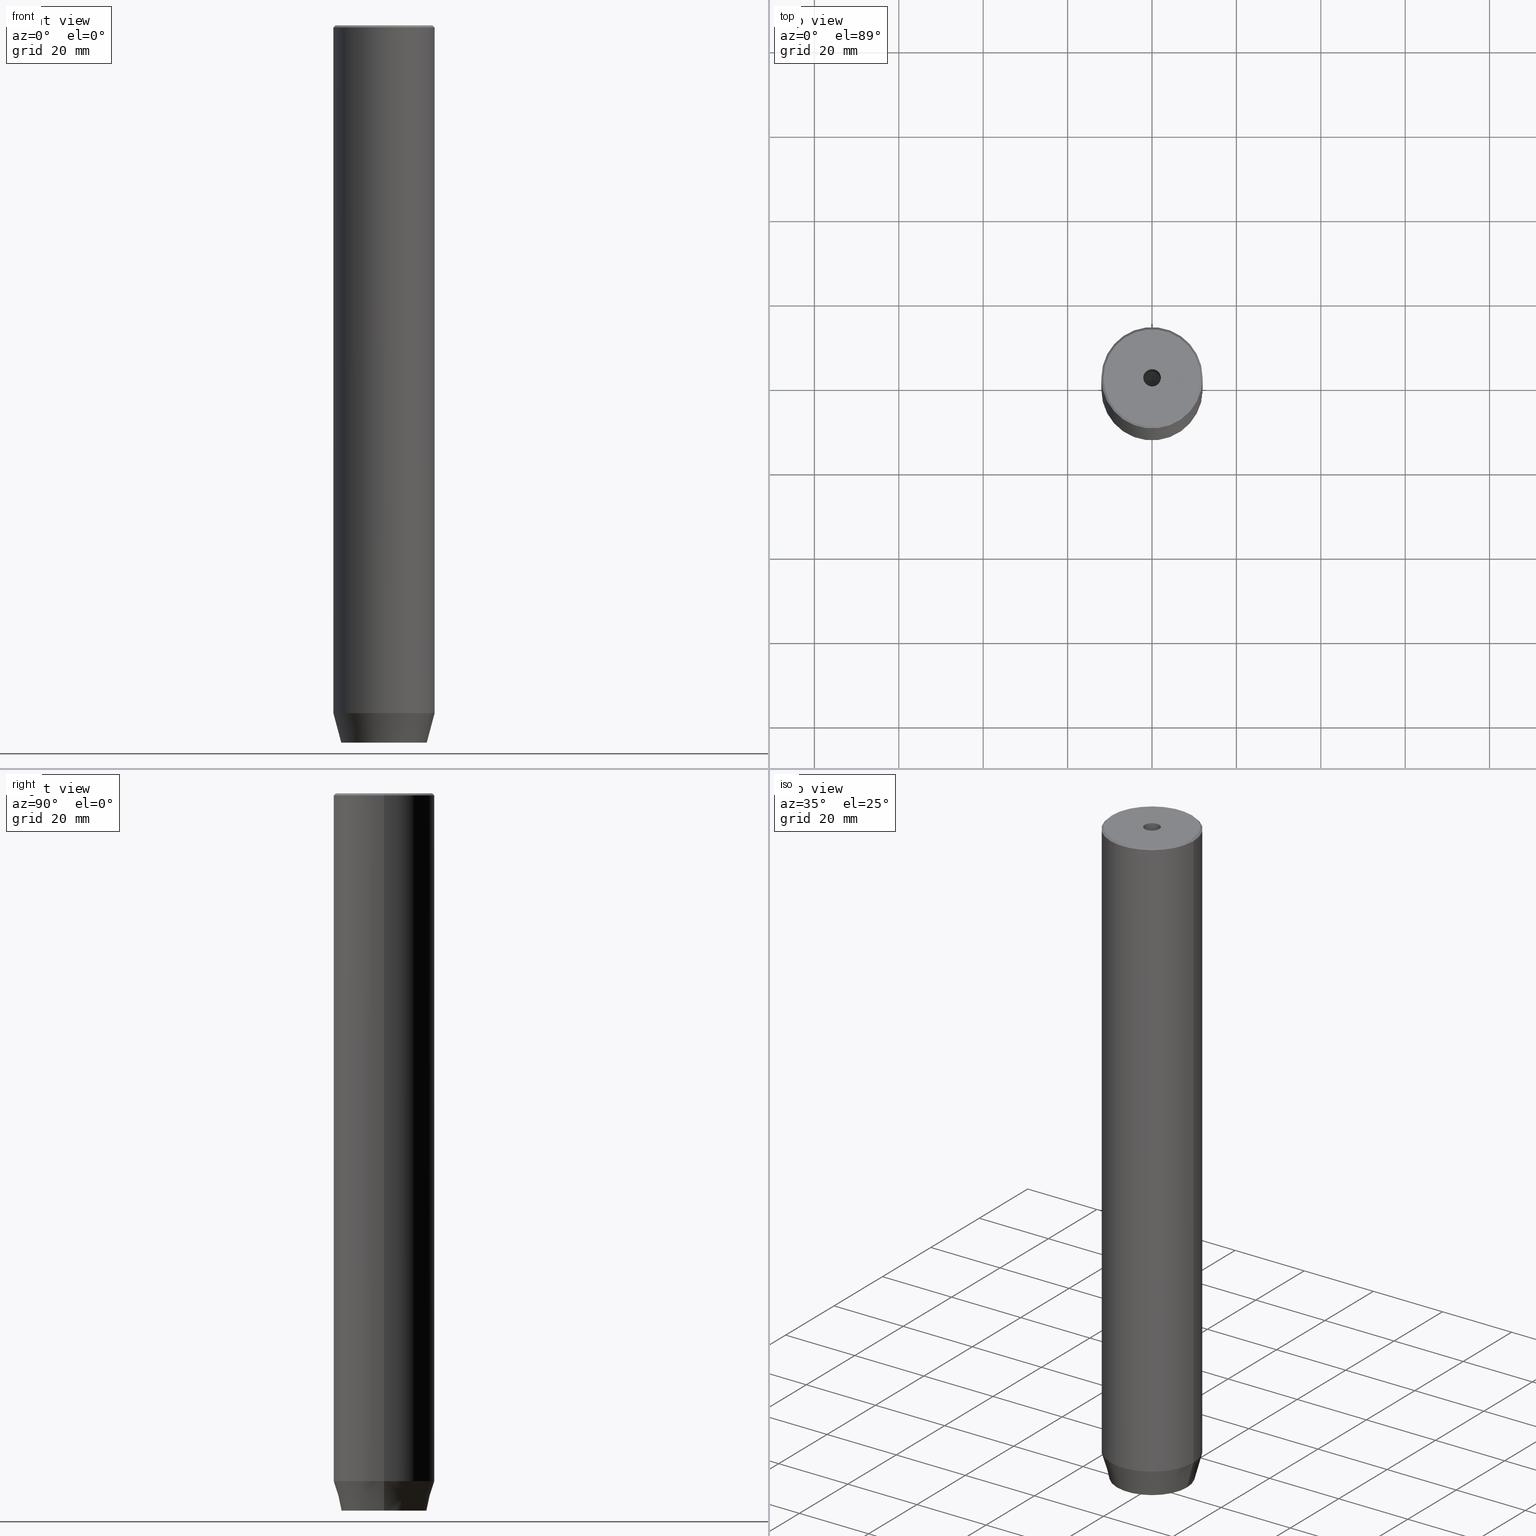
[diagram: canonical four-view strip — front | top / right | iso, engineering-drawing reading convention]
A machine part, canonical four-view strip (front | top / right | iso — engineering-drawing reading convention). The complete STEP part file that produces these views, byte-faithful:
ISO-10303-21;
HEADER;
FILE_DESCRIPTION (( 'STEP AP203' ),
    '1' );
FILE_NAME ('43f9.STEP',
    '2024-01-02T17:15:09',
    ( '' ),
    ( '' ),
    'SwSTEP 2.0',
    'SolidWorks 2019',
    '' );
FILE_SCHEMA (( 'CONFIG_CONTROL_DESIGN' ));
ENDSEC;

DATA;
#1 = FACE_OUTER_BOUND ( 'NONE', #454, .T. ) ;
#2 = VECTOR ( 'NONE', #385, 1000.000000000000000 ) ;
#3 = VECTOR ( 'NONE', #61, 1000.000000000000000 ) ;
#4 = EDGE_LOOP ( 'NONE', ( #36, #18 ) ) ;
#5 = FACE_BOUND ( 'NONE', #466, .T. ) ;
#6 = EDGE_CURVE ( 'NONE', #544, #267, #448, .T. ) ;
#7 = ORIENTED_EDGE ( 'NONE', *, *, #71, .T. ) ;
#8 = EDGE_CURVE ( 'NONE', #452, #434, #24, .T. ) ;
#9 = DIRECTION ( 'NONE',  ( 0.5000000000000001110, 0.8660254037844385966, -0.000000000000000000 ) ) ;
#10 = AXIS2_PLACEMENT_3D ( 'NONE', #182, #54, #540 ) ;
#11 = LOCAL_TIME ( 18, 15, 9.000000000000000000, #430 ) ;
#12 = CARTESIAN_POINT ( 'NONE',  ( -4.000000000000000000, 2.309401076758503368, -170.0000000000000000 ) ) ;
#13 = FACE_OUTER_BOUND ( 'NONE', #328, .T. ) ;
#14 = ORIENTED_EDGE ( 'NONE', *, *, #266, .T. ) ;
#15 = CARTESIAN_POINT ( 'NONE',  ( 12.00000000000000000, 0.000000000000000000, -162.9999999999999716 ) ) ;
#16 = CC_DESIGN_DATE_AND_TIME_ASSIGNMENT ( #210, #219, ( #223 ) ) ;
#17 = CARTESIAN_POINT ( 'NONE',  ( 2.000000000000000444, 3.464101615137754386, -167.2000000000000171 ) ) ;
#18 = ORIENTED_EDGE ( 'NONE', *, *, #131, .F. ) ;
#19 = CARTESIAN_POINT ( 'NONE',  ( 2.000000000000000888, -3.464101615137754386, -170.0000000000000000 ) ) ;
#20 = AXIS2_PLACEMENT_3D ( 'NONE', #417, #517, #513 ) ;
#21 = EDGE_CURVE ( 'NONE', #441, #414, #359, .T. ) ;
#22 = FACE_OUTER_BOUND ( 'NONE', #35, .T. ) ;
#23 = EDGE_LOOP ( 'NONE', ( #348, #227 ) ) ;
#24 = LINE ( 'NONE', #241, #501 ) ;
#25 = CARTESIAN_POINT ( 'NONE',  ( 2.000000000000000888, -3.464101615137754386, -167.2000000000000171 ) ) ;
#26 = CC_DESIGN_PERSON_AND_ORGANIZATION_ASSIGNMENT ( #32, #386, ( #84 ) ) ;
#27 = PERSON_AND_ORGANIZATION ( #47, #265 ) ;
#28 = AXIS2_PLACEMENT_3D ( 'NONE', #487, #138, #492 ) ;
#29 = AXIS2_PLACEMENT_3D ( 'NONE', #305, #296, #113 ) ;
#30 = COORDINATED_UNIVERSAL_TIME_OFFSET ( 1, 0, .AHEAD. ) ;
#31 = EDGE_CURVE ( 'NONE', #494, #452, #238, .T. ) ;
#32 = PERSON_AND_ORGANIZATION ( #47, #265 ) ;
#33 = DIRECTION ( 'NONE',  ( 0.000000000000000000, 0.000000000000000000, -1.000000000000000000 ) ) ;
#34 = LINE ( 'NONE', #310, #2 ) ;
#35 = EDGE_LOOP ( 'NONE', ( #196, #400, #566, #83 ) ) ;
#36 = ORIENTED_EDGE ( 'NONE', *, *, #206, .F. ) ;
#37 = APPROVAL_DATE_TIME ( #77, #447 ) ;
#38 = CARTESIAN_POINT ( 'NONE',  ( 0.000000000000000000, 0.000000000000000000, -167.2000000000000171 ) ) ;
#39 = VECTOR ( 'NONE', #58, 999.9999999999998863 ) ;
#40 = LINE ( 'NONE', #407, #461 ) ;
#41 = EDGE_LOOP ( 'NONE', ( #171, #491, #355, #190 ) ) ;
#42 = EDGE_CURVE ( 'NONE', #267, #262, #102, .T. ) ;
#43 = EDGE_CURVE ( 'NONE', #64, #270, #140, .T. ) ;
#44 = CARTESIAN_POINT ( 'NONE',  ( 2.099999999999994760, 0.000000000000000000, -30.00000000000000000 ) ) ;
#45 = ORIENTED_EDGE ( 'NONE', *, *, #345, .F. ) ;
#46 = ORIENTED_EDGE ( 'NONE', *, *, #419, .F. ) ;
#47 = PERSON ( 'NEUR�EN�', 'NEUR�EN�', 'NEUR�EN�', ('NEUR�EN�'), ('NEUR�EN�'), ('NEUR�EN�') ) ;
#48 = VECTOR ( 'NONE', #347, 1000.000000000000114 ) ;
#49 = CARTESIAN_POINT ( 'NONE',  ( -4.000000000000000000, -2.309401076758503368, -170.0000000000000000 ) ) ;
#50 = VECTOR ( 'NONE', #200, 1000.000000000000000 ) ;
#51 = CARTESIAN_POINT ( 'NONE',  ( 2.099999999999998757, 0.000000000000000000, -1.990051048614449116E-16 ) ) ;
#52 = EDGE_CURVE ( 'NONE', #270, #494, #559, .T. ) ;
#53 = DIRECTION ( 'NONE',  ( -0.5000000000000003331, -0.8660254037844385966, 0.000000000000000000 ) ) ;
#54 = DIRECTION ( 'NONE',  ( -0.000000000000000000, -0.000000000000000000, 1.000000000000000000 ) ) ;
#55 = CARTESIAN_POINT ( 'NONE',  ( -12.00000000000000000, 1.469576158976823947E-15, -162.9999999999999716 ) ) ;
#56 = DIRECTION ( 'NONE',  ( -1.000000000000000000, 0.000000000000000000, -0.000000000000000000 ) ) ;
#57 = AXIS2_PLACEMENT_3D ( 'NONE', #95, #396, #278 ) ;
#58 = DIRECTION ( 'NONE',  ( 0.8660254037844387076, 0.5000000000000001110, 0.000000000000000000 ) ) ;
#59 = APPROVAL ( #573, 'NEUR�EN�' ) ;
#60 = DIRECTION ( 'NONE',  ( -0.000000000000000000, -0.000000000000000000, -1.000000000000000000 ) ) ;
#61 = DIRECTION ( 'NONE',  ( -0.000000000000000000, -0.000000000000000000, 1.000000000000000000 ) ) ;
#62 = ORIENTED_EDGE ( 'NONE', *, *, #497, .F. ) ;
#63 = CARTESIAN_POINT ( 'NONE',  ( 0.000000000000000000, 0.000000000000000000, -30.00000000000000000 ) ) ;
#64 = VERTEX_POINT ( 'NONE', #143 ) ;
#65 = DIRECTION ( 'NONE',  ( 1.000000000000000000, 0.000000000000000000, 0.000000000000000000 ) ) ;
#66 = VERTEX_POINT ( 'NONE', #55 ) ;
#67 = VECTOR ( 'NONE', #144, 1000.000000000000000 ) ;
#68 =( NAMED_UNIT ( * ) SI_UNIT ( $, .STERADIAN. ) SOLID_ANGLE_UNIT ( ) );
#69 = APPROVAL ( #172, 'NEUR�EN�' ) ;
#70 = VECTOR ( 'NONE', #529, 1000.000000000000114 ) ;
#71 = EDGE_CURVE ( 'NONE', #452, #441, #460, .T. ) ;
#72 = ORIENTED_EDGE ( 'NONE', *, *, #42, .T. ) ;
#73 = CALENDAR_DATE ( 2024, 2, 1 ) ;
#74 = AXIS2_PLACEMENT_3D ( 'NONE', #148, #334, #509 ) ;
#75 = CALENDAR_DATE ( 2024, 2, 1 ) ;
#76 = AXIS2_PLACEMENT_3D ( 'NONE', #375, #165, #120 ) ;
#77 = DATE_AND_TIME ( #388, #216 ) ;
#78 = ADVANCED_FACE ( 'NONE', ( #510 ), #96, .T. ) ;
#79 = ORIENTED_EDGE ( 'NONE', *, *, #561, .F. ) ;
#80 = SHAPE_DEFINITION_REPRESENTATION ( #245, #519 ) ;
#81 = CARTESIAN_POINT ( 'NONE',  ( -11.49999999999999467, 0.000000000000000000, 0.000000000000000000 ) ) ;
#82 = CONICAL_SURFACE ( 'NONE', #423, 11.49999999999999467, 0.7853981633974482790 ) ;
#83 = ORIENTED_EDGE ( 'NONE', *, *, #321, .T. ) ;
#84 = SECURITY_CLASSIFICATION ( '', '', #161 ) ;
#85 = ORIENTED_EDGE ( 'NONE', *, *, #412, .F. ) ;
#86 = VERTEX_POINT ( 'NONE', #12 ) ;
#87 = AXIS2_PLACEMENT_3D ( 'NONE', #429, #583, #346 ) ;
#88 = DIRECTION ( 'NONE',  ( 0.000000000000000000, 1.000000000000000000, 0.000000000000000000 ) ) ;
#89 = ORIENTED_EDGE ( 'NONE', *, *, #43, .T. ) ;
#90 = ORIENTED_EDGE ( 'NONE', *, *, #211, .F. ) ;
#91 = LINE ( 'NONE', #446, #368 ) ;
#92 = ORIENTED_EDGE ( 'NONE', *, *, #21, .T. ) ;
#93 = LINE ( 'NONE', #99, #48 ) ;
#94 = ORIENTED_EDGE ( 'NONE', *, *, #156, .T. ) ;
#95 = CARTESIAN_POINT ( 'NONE',  ( 0.000000000000000000, 0.000000000000000000, 0.000000000000000000 ) ) ;
#96 = CONICAL_SURFACE ( 'NONE', #560, 11.49999999999999467, 0.7853981633974482790 ) ;
#97 = EDGE_CURVE ( 'NONE', #262, #354, #142, .T. ) ;
#98 = EDGE_CURVE ( 'NONE', #267, #398, #534, .T. ) ;
#99 = CARTESIAN_POINT ( 'NONE',  ( 12.00000000000000000, 0.000000000000000000, -162.9999999999999716 ) ) ;
#100 = DIRECTION ( 'NONE',  ( 1.000000000000000000, 0.000000000000000000, 0.000000000000000000 ) ) ;
#101 = ORIENTED_EDGE ( 'NONE', *, *, #556, .T. ) ;
#102 = LINE ( 'NONE', #234, #440 ) ;
#103 = ORIENTED_EDGE ( 'NONE', *, *, #98, .F. ) ;
#104 = DIRECTION ( 'NONE',  ( 0.7071067811865474617, 8.659560562354932858E-17, -0.7071067811865474617 ) ) ;
#105 = AXIS2_PLACEMENT_3D ( 'NONE', #362, #504, #100 ) ;
#106 = CARTESIAN_POINT ( 'NONE',  ( 0.000000000000000000, 0.000000000000000000, 0.000000000000000000 ) ) ;
#107 = EDGE_LOOP ( 'NONE', ( #468, #343, #233, #549 ) ) ;
#108 = CARTESIAN_POINT ( 'NONE',  ( 0.000000000000000000, 0.000000000000000000, -162.9999999999999716 ) ) ;
#109 = ORIENTED_EDGE ( 'NONE', *, *, #186, .T. ) ;
#110 = AXIS2_PLACEMENT_3D ( 'NONE', #585, #543, #500 ) ;
#111 =( LENGTH_UNIT ( ) NAMED_UNIT ( * ) SI_UNIT ( .MILLI., .METRE. ) );
#112 = CIRCLE ( 'NONE', #336, 2.099999999999998757 ) ;
#113 = DIRECTION ( 'NONE',  ( 1.000000000000000000, 0.000000000000000000, 0.000000000000000000 ) ) ;
#114 = DIRECTION ( 'NONE',  ( -0.000000000000000000, -0.000000000000000000, 1.000000000000000000 ) ) ;
#115 = PERSON_AND_ORGANIZATION ( #47, #265 ) ;
#116 = FACE_BOUND ( 'NONE', #418, .T. ) ;
#117 = FACE_OUTER_BOUND ( 'NONE', #290, .T. ) ;
#118 = VECTOR ( 'NONE', #104, 1000.000000000000114 ) ;
#119 = ADVANCED_FACE ( 'NONE', ( #522 ), #428, .T. ) ;
#120 = DIRECTION ( 'NONE',  ( -0.8660254037844385966, -0.4999999999999999445, 0.000000000000000000 ) ) ;
#121 = VECTOR ( 'NONE', #330, 1000.000000000000000 ) ;
#122 = ORIENTED_EDGE ( 'NONE', *, *, #393, .F. ) ;
#123 = APPLICATION_PROTOCOL_DEFINITION ( 'international standard', 'config_control_design', 1994, #438 ) ;
#124 = DIRECTION ( 'NONE',  ( 0.8660254037844384856, 0.5000000000000002220, 0.000000000000000000 ) ) ;
#125 = ORIENTED_EDGE ( 'NONE', *, *, #300, .F. ) ;
#126 = PERSON_AND_ORGANIZATION ( #47, #265 ) ;
#127 = VERTEX_POINT ( 'NONE', #274 ) ;
#128 = ADVANCED_FACE ( 'NONE', ( #183 ), #314, .F. ) ;
#129 = LINE ( 'NONE', #175, #199 ) ;
#130 = PLANE ( 'NONE',  #248 ) ;
#131 = EDGE_CURVE ( 'NONE', #304, #350, #170, .T. ) ;
#132 = ORIENTED_EDGE ( 'NONE', *, *, #561, .T. ) ;
#133 = ORIENTED_EDGE ( 'NONE', *, *, #551, .F. ) ;
#134 = FACE_OUTER_BOUND ( 'NONE', #107, .T. ) ;
#135 = DIRECTION ( 'NONE',  ( 1.000000000000000000, 0.000000000000000000, 0.000000000000000000 ) ) ;
#136 = ORIENTED_EDGE ( 'NONE', *, *, #8, .T. ) ;
#137 = EDGE_CURVE ( 'NONE', #304, #66, #380, .T. ) ;
#138 = DIRECTION ( 'NONE',  ( -0.000000000000000000, -0.000000000000000000, 1.000000000000000000 ) ) ;
#139 = UNCERTAINTY_MEASURE_WITH_UNIT (LENGTH_MEASURE( 1.000000000000000082E-05 ), #111, 'distance_accuracy_value', 'NONE');
#140 = LINE ( 'NONE', #283, #192 ) ;
#141 = DIRECTION ( 'NONE',  ( 0.000000000000000000, 0.000000000000000000, -1.000000000000000000 ) ) ;
#142 = CIRCLE ( 'NONE', #205, 2.099999999999998757 ) ;
#143 = CARTESIAN_POINT ( 'NONE',  ( 4.336808689942017736E-16, -4.618802153517006737, -167.2000000000000171 ) ) ;
#144 = DIRECTION ( 'NONE',  ( -0.000000000000000000, -0.000000000000000000, 1.000000000000000000 ) ) ;
#145 = CC_DESIGN_DATE_AND_TIME_ASSIGNMENT ( #537, #533, ( #84 ) ) ;
#146 = EDGE_LOOP ( 'NONE', ( #160, #335, #432, #563 ) ) ;
#147 = FACE_OUTER_BOUND ( 'NONE', #373, .T. ) ;
#148 = CARTESIAN_POINT ( 'NONE',  ( 0.000000000000000000, 0.000000000000000000, 0.000000000000000000 ) ) ;
#149 = VECTOR ( 'NONE', #565, 1000.000000000000114 ) ;
#150 = ORIENTED_EDGE ( 'NONE', *, *, #71, .F. ) ;
#151 = LINE ( 'NONE', #408, #118 ) ;
#152 = ORIENTED_EDGE ( 'NONE', *, *, #97, .T. ) ;
#153 = LINE ( 'NONE', #194, #252 ) ;
#154 = CARTESIAN_POINT ( 'NONE',  ( 0.000000000000000000, 0.000000000000000000, -0.5000000000000056621 ) ) ;
#155 = CARTESIAN_POINT ( 'NONE',  ( -10.12435565298212836, 1.354726066681110655E-15, -170.0000000000000000 ) ) ;
#156 = EDGE_CURVE ( 'NONE', #217, #197, #212, .T. ) ;
#157 = MANIFOLD_SOLID_BREP ( 'Vrt�k z�vitn�ku pro M5 z�vit1', #302 ) ;
#158 =( GEOMETRIC_REPRESENTATION_CONTEXT ( 3 ) GLOBAL_UNCERTAINTY_ASSIGNED_CONTEXT ( ( #139 ) ) GLOBAL_UNIT_ASSIGNED_CONTEXT ( ( #111, #193, #68 ) ) REPRESENTATION_CONTEXT ( 'NONE', 'WORKASPACE' ) );
#159 = CARTESIAN_POINT ( 'NONE',  ( -12.00000000000000000, 1.469576158976823947E-15, -0.5000000000000056621 ) ) ;
#160 = ORIENTED_EDGE ( 'NONE', *, *, #137, .F. ) ;
#161 = SECURITY_CLASSIFICATION_LEVEL ( 'unclassified' ) ;
#162 = DIRECTION ( 'NONE',  ( -0.000000000000000000, -0.000000000000000000, -1.000000000000000000 ) ) ;
#163 = COORDINATED_UNIVERSAL_TIME_OFFSET ( 1, 0, .AHEAD. ) ;
#164 = FACE_OUTER_BOUND ( 'NONE', #272, .T. ) ;
#165 = DIRECTION ( 'NONE',  ( -0.5000000000000000000, 0.8660254037844387076, 0.000000000000000000 ) ) ;
#166 = ORIENTED_EDGE ( 'NONE', *, *, #337, .F. ) ;
#167 = CALENDAR_DATE ( 2024, 2, 1 ) ;
#168 = CARTESIAN_POINT ( 'NONE',  ( 4.000000000000000000, 0.000000000000000000, -167.2000000000000171 ) ) ;
#169 = ORIENTED_EDGE ( 'NONE', *, *, #427, .T. ) ;
#170 = CIRCLE ( 'NONE', #269, 10.12435565298212836 ) ;
#171 = ORIENTED_EDGE ( 'NONE', *, *, #439, .T. ) ;
#172 = APPROVAL_STATUS ( 'not_yet_approved' ) ;
#173 = LINE ( 'NONE', #515, #303 ) ;
#174 = ORIENTED_EDGE ( 'NONE', *, *, #97, .F. ) ;
#175 = CARTESIAN_POINT ( 'NONE',  ( 4.336808689942017736E-16, -4.618802153517006737, -167.2000000000000171 ) ) ;
#176 = CARTESIAN_POINT ( 'NONE',  ( 2.000000000000000888, -3.464101615137754386, -167.2000000000000171 ) ) ;
#177 = DIRECTION ( 'NONE',  ( 1.000000000000000000, 0.000000000000000000, 0.000000000000000000 ) ) ;
#178 = AXIS2_PLACEMENT_3D ( 'NONE', #361, #9, #503 ) ;
#179 = LINE ( 'NONE', #401, #437 ) ;
#180 = DIRECTION ( 'NONE',  ( 1.000000000000000000, 0.000000000000000000, 0.000000000000000000 ) ) ;
#181 = CIRCLE ( 'NONE', #410, 10.12435565298212836 ) ;
#182 = CARTESIAN_POINT ( 'NONE',  ( 0.000000000000000000, 0.000000000000000000, 0.000000000000000000 ) ) ;
#183 = FACE_OUTER_BOUND ( 'NONE', #293, .T. ) ;
#184 = ADVANCED_FACE ( 'NONE', ( #572 ), #285, .T. ) ;
#185 = CARTESIAN_POINT ( 'NONE',  ( -2.099999999999994760, 2.571758278209435054E-16, -30.00000000000000000 ) ) ;
#186 = EDGE_CURVE ( 'NONE', #441, #127, #34, .T. ) ;
#187 = CARTESIAN_POINT ( 'NONE',  ( 0.000000000000000000, 4.618802153517006737, -167.2000000000000171 ) ) ;
#188 = ORIENTED_EDGE ( 'NONE', *, *, #98, .T. ) ;
#189 = FACE_OUTER_BOUND ( 'NONE', #261, .T. ) ;
#190 = ORIENTED_EDGE ( 'NONE', *, *, #581, .T. ) ;
#191 = DIRECTION ( 'NONE',  ( -0.000000000000000000, -0.000000000000000000, 1.000000000000000000 ) ) ;
#192 = VECTOR ( 'NONE', #502, 1000.000000000000114 ) ;
#193 =( NAMED_UNIT ( * ) PLANE_ANGLE_UNIT ( ) SI_UNIT ( $, .RADIAN. ) );
#194 = CARTESIAN_POINT ( 'NONE',  ( 2.000000000000000444, 3.464101615137754386, -170.0000000000000000 ) ) ;
#195 = EDGE_CURVE ( 'NONE', #354, #262, #112, .T. ) ;
#196 = ORIENTED_EDGE ( 'NONE', *, *, #211, .T. ) ;
#197 = VERTEX_POINT ( 'NONE', #159 ) ;
#198 = CARTESIAN_POINT ( 'NONE',  ( -2.000000000000000888, -3.464101615137754386, -170.0000000000000000 ) ) ;
#199 = VECTOR ( 'NONE', #231, 1000.000000000000000 ) ;
#200 = DIRECTION ( 'NONE',  ( -0.8571673007021113344, 1.049727191138617463E-16, 0.5150380749100558209 ) ) ;
#201 = CC_DESIGN_PERSON_AND_ORGANIZATION_ASSIGNMENT ( #477, #530, ( #349 ) ) ;
#202 = PLANE ( 'NONE',  #76 ) ;
#203 = ORIENTED_EDGE ( 'NONE', *, *, #512, .T. ) ;
#204 = LINE ( 'NONE', #415, #358 ) ;
#205 = AXIS2_PLACEMENT_3D ( 'NONE', #409, #191, #371 ) ;
#206 = EDGE_CURVE ( 'NONE', #350, #304, #181, .T. ) ;
#207 = DIRECTION ( 'NONE',  ( -0.000000000000000000, -0.000000000000000000, 1.000000000000000000 ) ) ;
#208 = CIRCLE ( 'NONE', #28, 11.49999999999999467 ) ;
#209 = CC_DESIGN_APPROVAL ( #69, ( #223 ) ) ;
#210 = DATE_AND_TIME ( #167, #277 ) ;
#211 = EDGE_CURVE ( 'NONE', #86, #434, #483, .T. ) ;
#212 = LINE ( 'NONE', #435, #472 ) ;
#213 = PERSON_AND_ORGANIZATION ( #47, #265 ) ;
#214 = ORIENTED_EDGE ( 'NONE', *, *, #43, .F. ) ;
#215 = VECTOR ( 'NONE', #333, 1000.000000000000114 ) ;
#216 = LOCAL_TIME ( 18, 15, 9.000000000000000000, #426 ) ;
#217 = VERTEX_POINT ( 'NONE', #81 ) ;
#218 = CARTESIAN_POINT ( 'NONE',  ( 4.336808689942017736E-16, -4.618802153517006737, -170.0000000000000000 ) ) ;
#219 = DATE_TIME_ROLE ( 'creation_date' ) ;
#220 = DIRECTION ( 'NONE',  ( -1.000000000000000000, 0.000000000000000000, -0.000000000000000000 ) ) ;
#221 = ORIENTED_EDGE ( 'NONE', *, *, #528, .T. ) ;
#222 = CYLINDRICAL_SURFACE ( 'NONE', #10, 12.00000000000000000 ) ;
#223 = PRODUCT_DEFINITION ( 'NEZN�M�', '', #349, #322 ) ;
#224 = VECTOR ( 'NONE', #312, 1000.000000000000000 ) ;
#225 = EDGE_LOOP ( 'NONE', ( #103, #72, #152, #133 ) ) ;
#226 = CARTESIAN_POINT ( 'NONE',  ( 10.12435565298212836, 0.000000000000000000, -170.0000000000000000 ) ) ;
#227 = ORIENTED_EDGE ( 'NONE', *, *, #337, .T. ) ;
#228 = DIRECTION ( 'NONE',  ( 0.000000000000000000, -1.000000000000000000, 0.000000000000000000 ) ) ;
#229 = CARTESIAN_POINT ( 'NONE',  ( 11.49999999999999467, 1.438959988998139766E-15, 0.000000000000000000 ) ) ;
#230 = DIRECTION ( 'NONE',  ( 0.8660254037844384856, -0.5000000000000002220, 0.000000000000000000 ) ) ;
#231 = DIRECTION ( 'NONE',  ( -0.000000000000000000, -0.000000000000000000, -1.000000000000000000 ) ) ;
#232 = DIRECTION ( 'NONE',  ( -0.8660254037844384856, -0.5000000000000002220, 0.000000000000000000 ) ) ;
#233 = ORIENTED_EDGE ( 'NONE', *, *, #300, .T. ) ;
#234 = CARTESIAN_POINT ( 'NONE',  ( -2.099999999999996980, 2.571758278209438013E-16, 0.000000000000000000 ) ) ;
#235 = ADVANCED_FACE ( 'NONE', ( #117 ), #130, .T. ) ;
#236 = ORIENTED_EDGE ( 'NONE', *, *, #31, .T. ) ;
#237 = LINE ( 'NONE', #25, #215 ) ;
#238 = LINE ( 'NONE', #555, #39 ) ;
#239 = DIRECTION ( 'NONE',  ( 1.000000000000000000, 0.000000000000000000, 0.000000000000000000 ) ) ;
#240 = ADVANCED_FACE ( 'NONE', ( #286 ), #558, .F. ) ;
#241 = CARTESIAN_POINT ( 'NONE',  ( 0.000000000000000000, 4.618802153517006737, -167.2000000000000171 ) ) ;
#242 = DIRECTION ( 'NONE',  ( -0.000000000000000000, 0.000000000000000000, -1.000000000000000000 ) ) ;
#243 = VERTEX_POINT ( 'NONE', #218 ) ;
#244 = CARTESIAN_POINT ( 'NONE',  ( 4.000000000000000000, -2.309401076758502480, -170.0000000000000000 ) ) ;
#245 = PRODUCT_DEFINITION_SHAPE ( 'NONE', 'NONE',  #223 ) ;
#246 = ORIENTED_EDGE ( 'NONE', *, *, #535, .T. ) ;
#247 = DIRECTION ( 'NONE',  ( 1.000000000000000000, 0.000000000000000000, 0.000000000000000000 ) ) ;
#248 = AXIS2_PLACEMENT_3D ( 'NONE', #38, #33, #220 ) ;
#249 = ORIENTED_EDGE ( 'NONE', *, *, #528, .F. ) ;
#250 = COORDINATED_UNIVERSAL_TIME_OFFSET ( 1, 0, .AHEAD. ) ;
#251 = DATE_AND_TIME ( #73, #327 ) ;
#252 = VECTOR ( 'NONE', #366, 1000.000000000000000 ) ;
#253 = ORIENTED_EDGE ( 'NONE', *, *, #556, .F. ) ;
#254 = CC_DESIGN_SECURITY_CLASSIFICATION ( #84, ( #349 ) ) ;
#255 = CARTESIAN_POINT ( 'NONE',  ( 0.000000000000000000, 0.000000000000000000, -170.0000000000000000 ) ) ;
#256 = APPROVAL_DATE_TIME ( #481, #59 ) ;
#257 = AXIS2_PLACEMENT_3D ( 'NONE', #317, #53, #230 ) ;
#258 = PERSON_AND_ORGANIZATION ( #47, #265 ) ;
#259 = ORIENTED_EDGE ( 'NONE', *, *, #419, .T. ) ;
#260 = DIRECTION ( 'NONE',  ( 0.8660254037844387076, 0.5000000000000001110, 0.000000000000000000 ) ) ;
#261 = EDGE_LOOP ( 'NONE', ( #166, #101, #311, #496 ) ) ;
#262 = VERTEX_POINT ( 'NONE', #476 ) ;
#263 = APPROVAL_DATE_TIME ( #251, #69 ) ;
#264 = CIRCLE ( 'NONE', #531, 2.099999999999994760 ) ;
#265 = ORGANIZATION ( 'NEUR�EN�', 'NEUR�EN�', '' ) ;
#266 = EDGE_CURVE ( 'NONE', #127, #584, #40, .T. ) ;
#267 = VERTEX_POINT ( 'NONE', #185 ) ;
#268 = VECTOR ( 'NONE', #455, 1000.000000000000000 ) ;
#269 = AXIS2_PLACEMENT_3D ( 'NONE', #445, #301, #372 ) ;
#270 = VERTEX_POINT ( 'NONE', #505 ) ;
#271 = PLANE ( 'NONE',  #178 ) ;
#272 = EDGE_LOOP ( 'NONE', ( #14, #85, #520, #109 ) ) ;
#273 = DIRECTION ( 'NONE',  ( 1.000000000000000000, 0.000000000000000000, 0.000000000000000000 ) ) ;
#274 = CARTESIAN_POINT ( 'NONE',  ( 4.000000000000000000, 2.309401076758503368, -170.0000000000000000 ) ) ;
#275 = CIRCLE ( 'NONE', #316, 12.00000000000000000 ) ;
#276 = ORIENTED_EDGE ( 'NONE', *, *, #512, .F. ) ;
#277 = LOCAL_TIME ( 18, 15, 9.000000000000000000, #30 ) ;
#278 = DIRECTION ( 'NONE',  ( 1.000000000000000000, 0.000000000000000000, 0.000000000000000000 ) ) ;
#279 = CARTESIAN_POINT ( 'NONE',  ( 0.000000000000000000, 0.000000000000000000, -162.9999999999999716 ) ) ;
#280 = DIRECTION ( 'NONE',  ( -0.000000000000000000, -0.000000000000000000, -1.000000000000000000 ) ) ;
#281 = PLANE ( 'NONE',  #110 ) ;
#282 = FACE_OUTER_BOUND ( 'NONE', #225, .T. ) ;
#283 = CARTESIAN_POINT ( 'NONE',  ( -2.000000000000000888, -3.464101615137754386, -167.2000000000000171 ) ) ;
#284 = DIRECTION ( 'NONE',  ( -0.000000000000000000, -0.000000000000000000, 1.000000000000000000 ) ) ;
#285 = CONICAL_SURFACE ( 'NONE', #87, 12.00000000000000000, 0.2617993877991499629 ) ;
#286 = FACE_OUTER_BOUND ( 'NONE', #395, .T. ) ;
#287 = ORIENTED_EDGE ( 'NONE', *, *, #6, .T. ) ;
#288 = CARTESIAN_POINT ( 'NONE',  ( -4.000000000000000000, 2.309401076758503368, -167.2000000000000171 ) ) ;
#289 = ADVANCED_FACE ( 'NONE', ( #147 ), #325, .F. ) ;
#290 = EDGE_LOOP ( 'NONE', ( #236, #7, #92, #132, #89, #464 ) ) ;
#291 = ORIENTED_EDGE ( 'NONE', *, *, #137, .T. ) ;
#292 = DIRECTION ( 'NONE',  ( -0.000000000000000000, -0.000000000000000000, 1.000000000000000000 ) ) ;
#293 = EDGE_LOOP ( 'NONE', ( #246, #46, #79, #484 ) ) ;
#294 = CARTESIAN_POINT ( 'NONE',  ( 0.000000000000000000, 0.000000000000000000, -30.00000000000000000 ) ) ;
#295 = ORIENTED_EDGE ( 'NONE', *, *, #499, .T. ) ;
#296 = DIRECTION ( 'NONE',  ( 0.000000000000000000, 0.000000000000000000, 1.000000000000000000 ) ) ;
#297 = CARTESIAN_POINT ( 'NONE',  ( 0.000000000000000000, 0.000000000000000000, 0.000000000000000000 ) ) ;
#298 = APPROVAL_ROLE ( '' ) ;
#299 = CIRCLE ( 'NONE', #57, 11.49999999999999467 ) ;
#300 = EDGE_CURVE ( 'NONE', #495, #547, #514, .T. ) ;
#301 = DIRECTION ( 'NONE',  ( -0.000000000000000000, -0.000000000000000000, 1.000000000000000000 ) ) ;
#302 = CLOSED_SHELL ( 'NONE', ( #306, #469, #462, #119, #527, #331, #397, #340, #184, #78, #319, #569, #289, #128, #308, #443, #235, #360, #240 ) ) ;
#303 = VECTOR ( 'NONE', #162, 1000.000000000000000 ) ;
#304 = VERTEX_POINT ( 'NONE', #155 ) ;
#305 = CARTESIAN_POINT ( 'NONE',  ( 0.000000000000000000, 0.000000000000000000, 0.000000000000000000 ) ) ;
#306 = ADVANCED_FACE ( 'NONE', ( #282 ), #524, .F. ) ;
#307 = EDGE_LOOP ( 'NONE', ( #420, #203, #580 ) ) ;
#308 = ADVANCED_FACE ( 'NONE', ( #164 ), #431, .F. ) ;
#309 = AXIS2_PLACEMENT_3D ( 'NONE', #456, #141, #56 ) ;
#310 = CARTESIAN_POINT ( 'NONE',  ( 4.000000000000000000, 2.309401076758503368, -167.2000000000000171 ) ) ;
#311 = ORIENTED_EDGE ( 'NONE', *, *, #499, .F. ) ;
#312 = DIRECTION ( 'NONE',  ( -0.000000000000000000, -0.000000000000000000, -1.000000000000000000 ) ) ;
#313 = DIRECTION ( 'NONE',  ( -0.000000000000000000, -0.000000000000000000, 1.000000000000000000 ) ) ;
#314 = PLANE ( 'NONE',  #421 ) ;
#315 = CARTESIAN_POINT ( 'NONE',  ( -4.336808689942017736E-16, 4.618802153517006737, -170.0000000000000000 ) ) ;
#316 = AXIS2_PLACEMENT_3D ( 'NONE', #154, #370, #329 ) ;
#317 = CARTESIAN_POINT ( 'NONE',  ( -2.000000000000000888, -3.464101615137754386, -167.2000000000000171 ) ) ;
#318 = DIRECTION ( 'NONE',  ( 1.000000000000000000, 0.000000000000000000, 0.000000000000000000 ) ) ;
#319 = ADVANCED_FACE ( 'NONE', ( #22 ), #202, .F. ) ;
#320 = LINE ( 'NONE', #586, #224 ) ;
#321 = EDGE_CURVE ( 'NONE', #494, #86, #173, .T. ) ;
#322 = DESIGN_CONTEXT ( 'detailed design', #438, 'design' ) ;
#323 = DIRECTION ( 'NONE',  ( 0.000000000000000000, 0.000000000000000000, -1.000000000000000000 ) ) ;
#324 = DIRECTION ( 'NONE',  ( 0.000000000000000000, -1.000000000000000000, 0.000000000000000000 ) ) ;
#325 = PLANE ( 'NONE',  #257 ) ;
#326 = AXIS2_PLACEMENT_3D ( 'NONE', #279, #545, #273 ) ;
#327 = LOCAL_TIME ( 18, 15, 9.000000000000000000, #163 ) ;
#328 = EDGE_LOOP ( 'NONE', ( #276, #287, #188 ) ) ;
#329 = DIRECTION ( 'NONE',  ( 1.000000000000000000, 0.000000000000000000, 0.000000000000000000 ) ) ;
#330 = DIRECTION ( 'NONE',  ( 0.8660254037844385966, -0.5000000000000001110, 0.000000000000000000 ) ) ;
#331 = ADVANCED_FACE ( 'NONE', ( #116, #406 ), #550, .T. ) ;
#332 = FACE_OUTER_BOUND ( 'NONE', #41, .T. ) ;
#333 = DIRECTION ( 'NONE',  ( -0.8660254037844384856, -0.5000000000000002220, 0.000000000000000000 ) ) ;
#334 = DIRECTION ( 'NONE',  ( -0.000000000000000000, -0.000000000000000000, 1.000000000000000000 ) ) ;
#335 = ORIENTED_EDGE ( 'NONE', *, *, #131, .T. ) ;
#336 = AXIS2_PLACEMENT_3D ( 'NONE', #546, #526, #470 ) ;
#337 = EDGE_CURVE ( 'NONE', #390, #217, #299, .T. ) ;
#338 = APPROVAL_STATUS ( 'not_yet_approved' ) ;
#339 = DIRECTION ( 'NONE',  ( -0.000000000000000000, -0.000000000000000000, 1.000000000000000000 ) ) ;
#340 = ADVANCED_FACE ( 'NONE', ( #134 ), #222, .T. ) ;
#341 = CIRCLE ( 'NONE', #576, 12.00000000000000000 ) ;
#342 = LOCAL_TIME ( 18, 15, 9.000000000000000000, #250 ) ;
#343 = ORIENTED_EDGE ( 'NONE', *, *, #571, .T. ) ;
#344 = APPROVAL_ROLE ( '' ) ;
#345 = EDGE_CURVE ( 'NONE', #350, #495, #93, .T. ) ;
#346 = DIRECTION ( 'NONE',  ( 1.000000000000000000, 0.000000000000000000, 0.000000000000000000 ) ) ;
#347 = DIRECTION ( 'NONE',  ( 0.2588190451025212391, 0.000000000000000000, 0.9659258262890680902 ) ) ;
#348 = ORIENTED_EDGE ( 'NONE', *, *, #405, .T. ) ;
#349 = PRODUCT_DEFINITION_FORMATION_WITH_SPECIFIED_SOURCE ( 'LIBOVOLN�', '', #478, .NOT_KNOWN. ) ;
#350 = VERTEX_POINT ( 'NONE', #226 ) ;
#351 = VERTEX_POINT ( 'NONE', #49 ) ;
#352 = DIRECTION ( 'NONE',  ( -0.000000000000000000, -0.000000000000000000, 1.000000000000000000 ) ) ;
#353 = CARTESIAN_POINT ( 'NONE',  ( 0.000000000000000000, 0.000000000000000000, -0.5000000000000056621 ) ) ;
#354 = VERTEX_POINT ( 'NONE', #51 ) ;
#355 = ORIENTED_EDGE ( 'NONE', *, *, #52, .F. ) ;
#356 = CARTESIAN_POINT ( 'NONE',  ( 4.000000000000000000, 2.309401076758503368, -167.2000000000000171 ) ) ;
#357 = AXIS2_PLACEMENT_3D ( 'NONE', #391, #352, #318 ) ;
#358 = VECTOR ( 'NONE', #60, 1000.000000000000000 ) ;
#359 = LINE ( 'NONE', #552, #389 ) ;
#360 = ADVANCED_FACE ( 'NONE', ( #450 ), #449, .F. ) ;
#361 = CARTESIAN_POINT ( 'NONE',  ( 2.000000000000000444, 3.464101615137754386, -167.2000000000000171 ) ) ;
#362 = CARTESIAN_POINT ( 'NONE',  ( 0.000000000000000000, 0.000000000000000000, -30.00000000000000000 ) ) ;
#363 = CYLINDRICAL_SURFACE ( 'NONE', #74, 12.00000000000000000 ) ;
#364 = CARTESIAN_POINT ( 'NONE',  ( -2.099999999999994760, 2.571758278209435054E-16, -30.00000000000000000 ) ) ;
#365 = ORIENTED_EDGE ( 'NONE', *, *, #393, .T. ) ;
#366 = DIRECTION ( 'NONE',  ( 0.8660254037844385966, -0.5000000000000001110, 0.000000000000000000 ) ) ;
#367 = DIRECTION ( 'NONE',  ( -0.000000000000000000, -0.000000000000000000, 1.000000000000000000 ) ) ;
#368 = VECTOR ( 'NONE', #88, 1000.000000000000000 ) ;
#369 = APPROVAL_PERSON_ORGANIZATION ( #258, #69, #344 ) ;
#370 = DIRECTION ( 'NONE',  ( 0.000000000000000000, 0.000000000000000000, -1.000000000000000000 ) ) ;
#371 = DIRECTION ( 'NONE',  ( 1.000000000000000000, 0.000000000000000000, 0.000000000000000000 ) ) ;
#372 = DIRECTION ( 'NONE',  ( 1.000000000000000000, 0.000000000000000000, 0.000000000000000000 ) ) ;
#373 = EDGE_LOOP ( 'NONE', ( #221, #542, #214, #259 ) ) ;
#374 = DIRECTION ( 'NONE',  ( -1.000000000000000000, 0.000000000000000000, 0.000000000000000000 ) ) ;
#375 = CARTESIAN_POINT ( 'NONE',  ( -2.000000000000000000, 3.464101615137754830, -167.2000000000000171 ) ) ;
#376 = PRODUCT_RELATED_PRODUCT_CATEGORY ( 'detail', '', ( #478 ) ) ;
#377 = ORIENTED_EDGE ( 'NONE', *, *, #497, .T. ) ;
#378 = CARTESIAN_POINT ( 'NONE',  ( 2.099999999999996980, 0.000000000000000000, 0.000000000000000000 ) ) ;
#379 = CIRCLE ( 'NONE', #457, 12.00000000000000000 ) ;
#380 = LINE ( 'NONE', #562, #70 ) ;
#381 = PERSON_AND_ORGANIZATION ( #47, #265 ) ;
#382 = DIRECTION ( 'NONE',  ( -0.7071067811865474617, 0.000000000000000000, -0.7071067811865474617 ) ) ;
#383 = MECHANICAL_CONTEXT ( 'NONE', #506, 'mechanical' ) ;
#384 = EDGE_CURVE ( 'NONE', #547, #197, #379, .T. ) ;
#385 = DIRECTION ( 'NONE',  ( -0.000000000000000000, -0.000000000000000000, -1.000000000000000000 ) ) ;
#386 = PERSON_AND_ORGANIZATION_ROLE ( 'classification_officer' ) ;
#387 = ORIENTED_EDGE ( 'NONE', *, *, #405, .F. ) ;
#388 = CALENDAR_DATE ( 2024, 2, 1 ) ;
#389 = VECTOR ( 'NONE', #324, 1000.000000000000000 ) ;
#390 = VERTEX_POINT ( 'NONE', #229 ) ;
#391 = CARTESIAN_POINT ( 'NONE',  ( 0.000000000000000000, 0.000000000000000000, -30.00000000000000000 ) ) ;
#392 = ORIENTED_EDGE ( 'NONE', *, *, #206, .T. ) ;
#393 = EDGE_CURVE ( 'NONE', #495, #66, #538, .T. ) ;
#394 = EDGE_LOOP ( 'NONE', ( #253, #387, #94, #489 ) ) ;
#395 = EDGE_LOOP ( 'NONE', ( #516, #579, #536, #474 ) ) ;
#396 = DIRECTION ( 'NONE',  ( -0.000000000000000000, -0.000000000000000000, 1.000000000000000000 ) ) ;
#397 = ADVANCED_FACE ( 'NONE', ( #5, #444 ), #281, .T. ) ;
#398 = VERTEX_POINT ( 'NONE', #44 ) ;
#399 = AXIS2_PLACEMENT_3D ( 'NONE', #294, #284, #247 ) ;
#400 = ORIENTED_EDGE ( 'NONE', *, *, #8, .F. ) ;
#401 = CARTESIAN_POINT ( 'NONE',  ( -12.00000000000000000, 1.469576158976823947E-15, 0.000000000000000000 ) ) ;
#402 = CC_DESIGN_PERSON_AND_ORGANIZATION_ASSIGNMENT ( #213, #475, ( #478 ) ) ;
#403 = AXIS2_PLACEMENT_3D ( 'NONE', #297, #114, #574 ) ;
#404 = DIRECTION ( 'NONE',  ( 0.000000000000000000, 0.000000000000000000, -1.000000000000000000 ) ) ;
#405 = EDGE_CURVE ( 'NONE', #217, #390, #208, .T. ) ;
#406 = FACE_OUTER_BOUND ( 'NONE', #4, .T. ) ;
#407 = CARTESIAN_POINT ( 'NONE',  ( 4.000000000000000000, 0.000000000000000000, -170.0000000000000000 ) ) ;
#408 = CARTESIAN_POINT ( 'NONE',  ( 11.49999999999999467, 1.408343819019455584E-15, 0.000000000000000000 ) ) ;
#409 = CARTESIAN_POINT ( 'NONE',  ( 0.000000000000000000, 0.000000000000000000, -1.990051048614449116E-16 ) ) ;
#410 = AXIS2_PLACEMENT_3D ( 'NONE', #255, #367, #177 ) ;
#411 = DIRECTION ( 'NONE',  ( 0.8571673007021113344, 0.000000000000000000, 0.5150380749100558209 ) ) ;
#412 = EDGE_CURVE ( 'NONE', #414, #584, #320, .T. ) ;
#413 = CARTESIAN_POINT ( 'NONE',  ( -4.000000000000000000, 0.000000000000000000, -167.2000000000000171 ) ) ;
#414 = VERTEX_POINT ( 'NONE', #453 ) ;
#415 = CARTESIAN_POINT ( 'NONE',  ( -4.000000000000000000, -2.309401076758503368, -167.2000000000000171 ) ) ;
#416 = DIRECTION ( 'NONE',  ( -1.000000000000000000, 0.000000000000000000, 0.000000000000000000 ) ) ;
#417 = CARTESIAN_POINT ( 'NONE',  ( -4.000000000000000000, 0.000000000000000000, -167.2000000000000171 ) ) ;
#418 = EDGE_LOOP ( 'NONE', ( #90, #471, #249, #490, #587, #62 ) ) ;
#419 = EDGE_CURVE ( 'NONE', #64, #243, #129, .T. ) ;
#420 = ORIENTED_EDGE ( 'NONE', *, *, #6, .F. ) ;
#421 = AXIS2_PLACEMENT_3D ( 'NONE', #176, #493, #124 ) ;
#422 = CARTESIAN_POINT ( 'NONE',  ( 12.00000000000000000, 0.000000000000000000, -0.5000000000000056621 ) ) ;
#423 = AXIS2_PLACEMENT_3D ( 'NONE', #498, #548, #374 ) ;
#424 = CC_DESIGN_APPROVAL ( #447, ( #349 ) ) ;
#425 = CC_DESIGN_PERSON_AND_ORGANIZATION_ASSIGNMENT ( #27, #570, ( #349 ) ) ;
#426 = COORDINATED_UNIVERSAL_TIME_OFFSET ( 1, 0, .AHEAD. ) ;
#427 = EDGE_CURVE ( 'NONE', #66, #197, #179, .T. ) ;
#428 = CONICAL_SURFACE ( 'NONE', #523, 12.00000000000000000, 0.2617993877991499629 ) ;
#429 = CARTESIAN_POINT ( 'NONE',  ( 0.000000000000000000, 0.000000000000000000, -162.9999999999999716 ) ) ;
#430 = COORDINATED_UNIVERSAL_TIME_OFFSET ( 1, 0, .AHEAD. ) ;
#431 = PLANE ( 'NONE',  #480 ) ;
#432 = ORIENTED_EDGE ( 'NONE', *, *, #345, .T. ) ;
#433 = DIRECTION ( 'NONE',  ( 1.000000000000000000, 0.000000000000000000, 0.000000000000000000 ) ) ;
#434 = VERTEX_POINT ( 'NONE', #315 ) ;
#435 = CARTESIAN_POINT ( 'NONE',  ( -11.49999999999999467, 0.000000000000000000, 0.000000000000000000 ) ) ;
#436 = APPROVAL_ROLE ( '' ) ;
#437 = VECTOR ( 'NONE', #313, 1000.000000000000000 ) ;
#438 = APPLICATION_CONTEXT ( 'configuration controlled 3d designs of mechanical parts and assemblies' ) ;
#439 = EDGE_CURVE ( 'NONE', #351, #86, #91, .T. ) ;
#440 = VECTOR ( 'NONE', #508, 1000.000000000000000 ) ;
#441 = VERTEX_POINT ( 'NONE', #356 ) ;
#442 = ORIENTED_EDGE ( 'NONE', *, *, #186, .F. ) ;
#443 = ADVANCED_FACE ( 'NONE', ( #1 ), #271, .F. ) ;
#444 = FACE_OUTER_BOUND ( 'NONE', #23, .T. ) ;
#445 = CARTESIAN_POINT ( 'NONE',  ( 0.000000000000000000, 0.000000000000000000, -170.0000000000000000 ) ) ;
#446 = CARTESIAN_POINT ( 'NONE',  ( -4.000000000000000000, 0.000000000000000000, -170.0000000000000000 ) ) ;
#447 = APPROVAL ( #338, 'NEUR�EN�' ) ;
#448 = LINE ( 'NONE', #364, #50 ) ;
#449 = CONICAL_SURFACE ( 'NONE', #357, 2.099999999999994760, 1.029744258676652535 ) ;
#450 = FACE_OUTER_BOUND ( 'NONE', #307, .T. ) ;
#451 = CARTESIAN_POINT ( 'NONE',  ( 0.000000000000000000, 0.000000000000000000, 0.000000000000000000 ) ) ;
#452 = VERTEX_POINT ( 'NONE', #187 ) ;
#453 = CARTESIAN_POINT ( 'NONE',  ( 4.000000000000000000, -2.309401076758502480, -167.2000000000000171 ) ) ;
#454 = EDGE_LOOP ( 'NONE', ( #377, #442, #150, #136 ) ) ;
#455 = DIRECTION ( 'NONE',  ( 0.000000000000000000, 1.000000000000000000, 0.000000000000000000 ) ) ;
#456 = CARTESIAN_POINT ( 'NONE',  ( 0.000000000000000000, 10.12435565298212836, -170.0000000000000000 ) ) ;
#457 = AXIS2_PLACEMENT_3D ( 'NONE', #353, #404, #135 ) ;
#458 = ORIENTED_EDGE ( 'NONE', *, *, #195, .F. ) ;
#459 = LINE ( 'NONE', #378, #67 ) ;
#460 = LINE ( 'NONE', #17, #121 ) ;
#461 = VECTOR ( 'NONE', #228, 1000.000000000000000 ) ;
#462 = ADVANCED_FACE ( 'NONE', ( #189 ), #82, .T. ) ;
#463 = LINE ( 'NONE', #553, #554 ) ;
#464 = ORIENTED_EDGE ( 'NONE', *, *, #52, .T. ) ;
#465 = FACE_OUTER_BOUND ( 'NONE', #541, .T. ) ;
#466 = EDGE_LOOP ( 'NONE', ( #458, #174 ) ) ;
#467 = VECTOR ( 'NONE', #232, 1000.000000000000114 ) ;
#468 = ORIENTED_EDGE ( 'NONE', *, *, #427, .F. ) ;
#469 = ADVANCED_FACE ( 'NONE', ( #13 ), #518, .F. ) ;
#470 = DIRECTION ( 'NONE',  ( 1.000000000000000000, 0.000000000000000000, 0.000000000000000000 ) ) ;
#471 = ORIENTED_EDGE ( 'NONE', *, *, #439, .F. ) ;
#472 = VECTOR ( 'NONE', #382, 1000.000000000000114 ) ;
#473 = LINE ( 'NONE', #19, #467 ) ;
#474 = ORIENTED_EDGE ( 'NONE', *, *, #195, .T. ) ;
#475 = PERSON_AND_ORGANIZATION_ROLE ( 'design_owner' ) ;
#476 = CARTESIAN_POINT ( 'NONE',  ( -2.099999999999998757, 2.571758278209440478E-16, -1.990051048614449116E-16 ) ) ;
#477 = PERSON_AND_ORGANIZATION ( #47, #265 ) ;
#478 = PRODUCT ( '43f9', '43f9', '', ( #383 ) ) ;
#479 = APPLICATION_PROTOCOL_DEFINITION ( 'international standard', 'config_control_design', 1994, #506 ) ;
#480 = AXIS2_PLACEMENT_3D ( 'NONE', #168, #482, #242 ) ;
#481 = DATE_AND_TIME ( #532, #342 ) ;
#482 = DIRECTION ( 'NONE',  ( 1.000000000000000000, 0.000000000000000000, -0.000000000000000000 ) ) ;
#483 = LINE ( 'NONE', #578, #488 ) ;
#484 = ORIENTED_EDGE ( 'NONE', *, *, #412, .T. ) ;
#485 = APPROVAL_PERSON_ORGANIZATION ( #381, #447, #436 ) ;
#486 = EDGE_LOOP ( 'NONE', ( #392, #291, #122, #45 ) ) ;
#487 = CARTESIAN_POINT ( 'NONE',  ( 0.000000000000000000, 0.000000000000000000, 0.000000000000000000 ) ) ;
#488 = VECTOR ( 'NONE', #260, 999.9999999999998863 ) ;
#489 = ORIENTED_EDGE ( 'NONE', *, *, #384, .F. ) ;
#490 = ORIENTED_EDGE ( 'NONE', *, *, #535, .F. ) ;
#491 = ORIENTED_EDGE ( 'NONE', *, *, #321, .F. ) ;
#492 = DIRECTION ( 'NONE',  ( 1.000000000000000000, 0.000000000000000000, 0.000000000000000000 ) ) ;
#493 = DIRECTION ( 'NONE',  ( 0.5000000000000003331, -0.8660254037844385966, 0.000000000000000000 ) ) ;
#494 = VERTEX_POINT ( 'NONE', #288 ) ;
#495 = VERTEX_POINT ( 'NONE', #15 ) ;
#496 = ORIENTED_EDGE ( 'NONE', *, *, #156, .F. ) ;
#497 = EDGE_CURVE ( 'NONE', #434, #127, #153, .T. ) ;
#498 = CARTESIAN_POINT ( 'NONE',  ( 0.000000000000000000, 0.000000000000000000, 0.000000000000000000 ) ) ;
#499 = EDGE_CURVE ( 'NONE', #197, #547, #275, .T. ) ;
#500 = DIRECTION ( 'NONE',  ( 1.000000000000000000, 0.000000000000000000, 0.000000000000000000 ) ) ;
#501 = VECTOR ( 'NONE', #280, 1000.000000000000000 ) ;
#502 = DIRECTION ( 'NONE',  ( -0.8660254037844384856, 0.5000000000000002220, 0.000000000000000000 ) ) ;
#503 = DIRECTION ( 'NONE',  ( -0.8660254037844385966, 0.5000000000000001110, 0.000000000000000000 ) ) ;
#504 = DIRECTION ( 'NONE',  ( -0.000000000000000000, -0.000000000000000000, 1.000000000000000000 ) ) ;
#505 = CARTESIAN_POINT ( 'NONE',  ( -4.000000000000000000, -2.309401076758503368, -167.2000000000000171 ) ) ;
#506 = APPLICATION_CONTEXT ( 'configuration controlled 3d designs of mechanical parts and assemblies' ) ;
#507 = CC_DESIGN_APPROVAL ( #59, ( #84 ) ) ;
#508 = DIRECTION ( 'NONE',  ( -0.000000000000000000, -0.000000000000000000, 1.000000000000000000 ) ) ;
#509 = DIRECTION ( 'NONE',  ( 1.000000000000000000, 0.000000000000000000, 0.000000000000000000 ) ) ;
#510 = FACE_OUTER_BOUND ( 'NONE', #394, .T. ) ;
#511 = AXIS2_PLACEMENT_3D ( 'NONE', #451, #582, #433 ) ;
#512 = EDGE_CURVE ( 'NONE', #544, #398, #463, .T. ) ;
#513 = DIRECTION ( 'NONE',  ( 0.000000000000000000, 0.000000000000000000, 1.000000000000000000 ) ) ;
#514 = LINE ( 'NONE', #568, #3 ) ;
#515 = CARTESIAN_POINT ( 'NONE',  ( -4.000000000000000000, 2.309401076758503368, -167.2000000000000171 ) ) ;
#516 = ORIENTED_EDGE ( 'NONE', *, *, #42, .F. ) ;
#517 = DIRECTION ( 'NONE',  ( -1.000000000000000000, 0.000000000000000000, 0.000000000000000000 ) ) ;
#518 = CONICAL_SURFACE ( 'NONE', #399, 2.099999999999994760, 1.029744258676652535 ) ;
#519 = ADVANCED_BREP_SHAPE_REPRESENTATION ( '43f9', ( #157, #29 ), #158 ) ;
#520 = ORIENTED_EDGE ( 'NONE', *, *, #21, .F. ) ;
#521 = PLANE ( 'NONE',  #20 ) ;
#522 = FACE_OUTER_BOUND ( 'NONE', #486, .T. ) ;
#523 = AXIS2_PLACEMENT_3D ( 'NONE', #525, #339, #180 ) ;
#524 = CYLINDRICAL_SURFACE ( 'NONE', #403, 2.099999999999996980 ) ;
#525 = CARTESIAN_POINT ( 'NONE',  ( 0.000000000000000000, 0.000000000000000000, -162.9999999999999716 ) ) ;
#526 = DIRECTION ( 'NONE',  ( -0.000000000000000000, -0.000000000000000000, 1.000000000000000000 ) ) ;
#527 = ADVANCED_FACE ( 'NONE', ( #465 ), #363, .T. ) ;
#528 = EDGE_CURVE ( 'NONE', #243, #351, #557, .T. ) ;
#529 = DIRECTION ( 'NONE',  ( -0.2588190451025212391, 3.169619151431771721E-17, 0.9659258262890680902 ) ) ;
#530 = PERSON_AND_ORGANIZATION_ROLE ( 'creator' ) ;
#531 = AXIS2_PLACEMENT_3D ( 'NONE', #63, #207, #239 ) ;
#532 = CALENDAR_DATE ( 2024, 2, 1 ) ;
#533 = DATE_TIME_ROLE ( 'classification_date' ) ;
#534 = CIRCLE ( 'NONE', #105, 2.099999999999994760 ) ;
#535 = EDGE_CURVE ( 'NONE', #584, #243, #473, .T. ) ;
#536 = ORIENTED_EDGE ( 'NONE', *, *, #551, .T. ) ;
#537 = DATE_AND_TIME ( #75, #11 ) ;
#538 = CIRCLE ( 'NONE', #326, 12.00000000000000000 ) ;
#539 = APPROVAL_PERSON_ORGANIZATION ( #115, #59, #298 ) ;
#540 = DIRECTION ( 'NONE',  ( 1.000000000000000000, 0.000000000000000000, 0.000000000000000000 ) ) ;
#541 = EDGE_LOOP ( 'NONE', ( #365, #169, #295, #125 ) ) ;
#542 = ORIENTED_EDGE ( 'NONE', *, *, #581, .F. ) ;
#543 = DIRECTION ( 'NONE',  ( 0.000000000000000000, -0.000000000000000000, 1.000000000000000000 ) ) ;
#544 = VERTEX_POINT ( 'NONE', #567 ) ;
#545 = DIRECTION ( 'NONE',  ( -0.000000000000000000, -0.000000000000000000, 1.000000000000000000 ) ) ;
#546 = CARTESIAN_POINT ( 'NONE',  ( 0.000000000000000000, 0.000000000000000000, -1.990051048614449116E-16 ) ) ;
#547 = VERTEX_POINT ( 'NONE', #422 ) ;
#548 = DIRECTION ( 'NONE',  ( 0.000000000000000000, 0.000000000000000000, -1.000000000000000000 ) ) ;
#549 = ORIENTED_EDGE ( 'NONE', *, *, #384, .T. ) ;
#550 = PLANE ( 'NONE',  #309 ) ;
#551 = EDGE_CURVE ( 'NONE', #398, #354, #459, .T. ) ;
#552 = CARTESIAN_POINT ( 'NONE',  ( 4.000000000000000000, 0.000000000000000000, -167.2000000000000171 ) ) ;
#553 = CARTESIAN_POINT ( 'NONE',  ( 2.099999999999994760, 0.000000000000000000, -30.00000000000000000 ) ) ;
#554 = VECTOR ( 'NONE', #411, 1000.000000000000000 ) ;
#555 = CARTESIAN_POINT ( 'NONE',  ( -2.000000000000000000, 3.464101615137754830, -167.2000000000000171 ) ) ;
#556 = EDGE_CURVE ( 'NONE', #390, #547, #151, .T. ) ;
#557 = LINE ( 'NONE', #198, #149 ) ;
#558 = CYLINDRICAL_SURFACE ( 'NONE', #511, 2.099999999999996980 ) ;
#559 = LINE ( 'NONE', #413, #268 ) ;
#560 = AXIS2_PLACEMENT_3D ( 'NONE', #106, #323, #416 ) ;
#561 = EDGE_CURVE ( 'NONE', #414, #64, #237, .T. ) ;
#562 = CARTESIAN_POINT ( 'NONE',  ( -12.00000000000000000, 1.469576158976823947E-15, -162.9999999999999716 ) ) ;
#563 = ORIENTED_EDGE ( 'NONE', *, *, #571, .F. ) ;
#564 = EDGE_CURVE ( 'NONE', #398, #267, #264, .T. ) ;
#565 = DIRECTION ( 'NONE',  ( -0.8660254037844384856, 0.5000000000000002220, 0.000000000000000000 ) ) ;
#566 = ORIENTED_EDGE ( 'NONE', *, *, #31, .F. ) ;
#567 = CARTESIAN_POINT ( 'NONE',  ( -7.656934449090954900E-15, 0.000000000000000000, -31.26180729995787289 ) ) ;
#568 = CARTESIAN_POINT ( 'NONE',  ( 12.00000000000000000, 0.000000000000000000, 0.000000000000000000 ) ) ;
#569 = ADVANCED_FACE ( 'NONE', ( #332 ), #521, .F. ) ;
#570 = PERSON_AND_ORGANIZATION_ROLE ( 'design_supplier' ) ;
#571 = EDGE_CURVE ( 'NONE', #66, #495, #341, .T. ) ;
#572 = FACE_OUTER_BOUND ( 'NONE', #146, .T. ) ;
#573 = APPROVAL_STATUS ( 'not_yet_approved' ) ;
#574 = DIRECTION ( 'NONE',  ( 1.000000000000000000, 0.000000000000000000, 0.000000000000000000 ) ) ;
#575 = CC_DESIGN_PERSON_AND_ORGANIZATION_ASSIGNMENT ( #126, #577, ( #223 ) ) ;
#576 = AXIS2_PLACEMENT_3D ( 'NONE', #108, #292, #65 ) ;
#577 = PERSON_AND_ORGANIZATION_ROLE ( 'creator' ) ;
#578 = CARTESIAN_POINT ( 'NONE',  ( -2.000000000000000000, 3.464101615137754830, -170.0000000000000000 ) ) ;
#579 = ORIENTED_EDGE ( 'NONE', *, *, #564, .F. ) ;
#580 = ORIENTED_EDGE ( 'NONE', *, *, #564, .T. ) ;
#581 = EDGE_CURVE ( 'NONE', #270, #351, #204, .T. ) ;
#582 = DIRECTION ( 'NONE',  ( -0.000000000000000000, -0.000000000000000000, 1.000000000000000000 ) ) ;
#583 = DIRECTION ( 'NONE',  ( -0.000000000000000000, -0.000000000000000000, 1.000000000000000000 ) ) ;
#584 = VERTEX_POINT ( 'NONE', #244 ) ;
#585 = CARTESIAN_POINT ( 'NONE',  ( 0.000000000000000000, 0.000000000000000000, 0.000000000000000000 ) ) ;
#586 = CARTESIAN_POINT ( 'NONE',  ( 4.000000000000000000, -2.309401076758502480, -167.2000000000000171 ) ) ;
#587 = ORIENTED_EDGE ( 'NONE', *, *, #266, .F. ) ;
ENDSEC;
END-ISO-10303-21;
